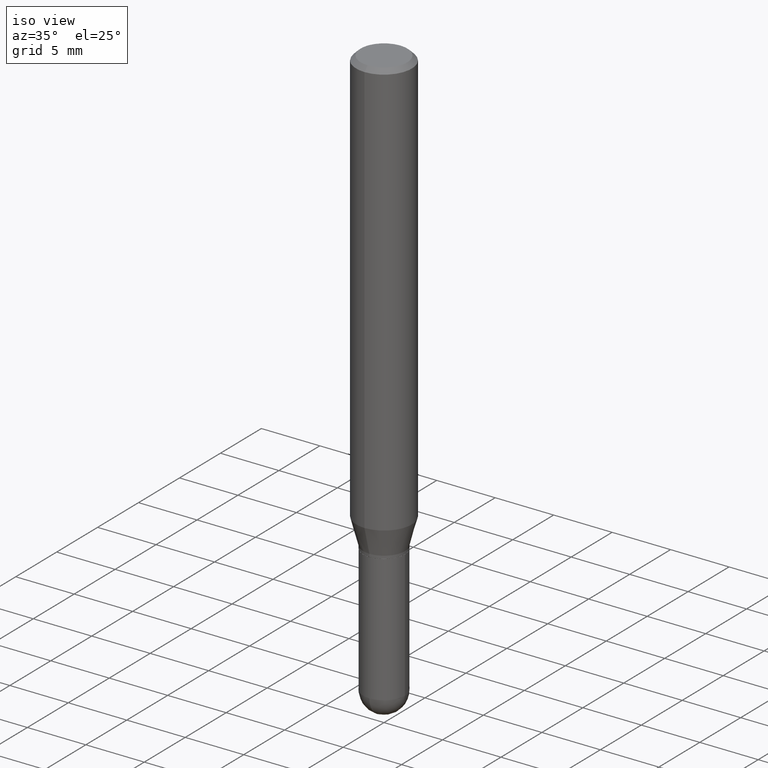
[diagram: clean part render]
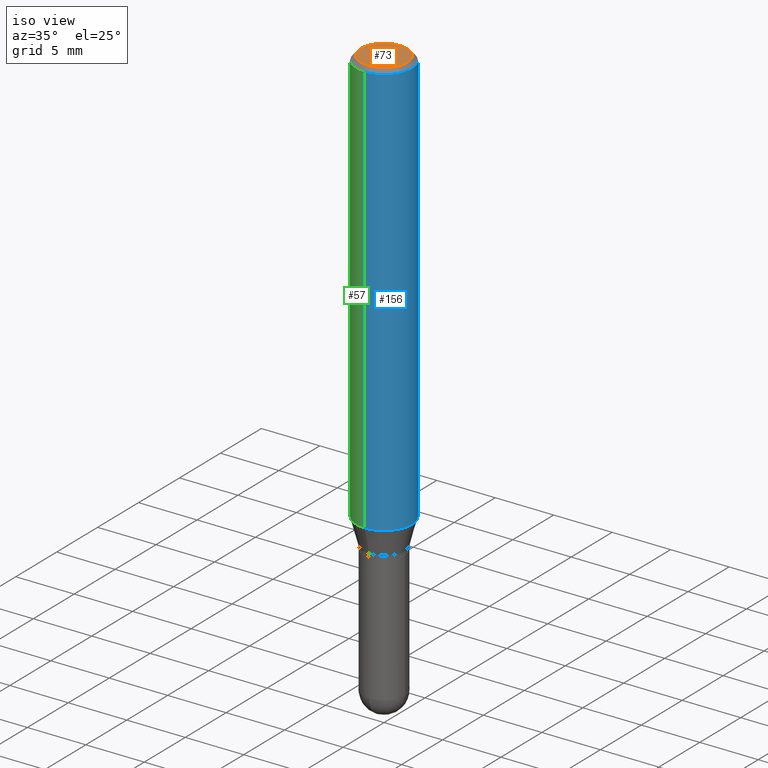
[diagram: same view with three faces highlighted in distinct colors, each labeled with its STEP entity id]
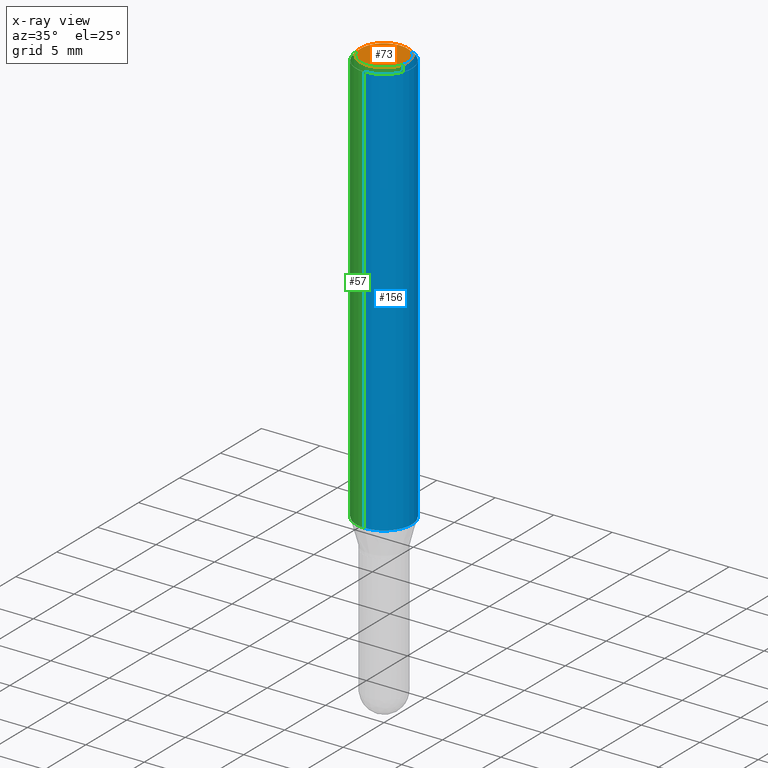
[diagram: x-ray of the same camera — body ghosted, the three highlighted faces saturated]
A machine part, iso view with three faces highlighted in distinct colors.
The next image is the same camera in x-ray (body ghosted, the three faces saturated) — at least one of them is partly hidden behind the body in this view.
Their STEP definitions:

[orange] entity #73 — the highlighted planar face has unit normal (0, -0, -1).
#72 = VERTEX_POINT ( 'NONE', #98 ) ;
#73 = ADVANCED_FACE ( 'NONE', ( #197 ), #77, .F. ) ;
#77 = PLANE ( 'NONE',  #104 ) ;
#98 = CARTESIAN_POINT ( 'NONE',  ( 6.022805309504406221E-16, 0.07875000000000001443, -2.531073514825954590E-16 ) ) ;
#104 = AXIS2_PLACEMENT_3D ( 'NONE', #204, #506, #401 ) ;
#111 = DIRECTION ( 'NONE',  ( -2.445022562880343100E-29, 3.492120384654201603E-15, 1.000000000000000000 ) ) ;
#149 = CARTESIAN_POINT ( 'NONE',  ( -5.917179523077944868E-16, -0.07875000000000001443, 2.969016091004413093E-16 ) ) ;
#188 = EDGE_CURVE ( 'NONE', #237, #72, #296, .T. ) ;
#197 = FACE_OUTER_BOUND ( 'NONE', #361, .T. ) ;
#204 = CARTESIAN_POINT ( 'NONE',  ( 5.499083108677934443E-16, 0.07875000000000001443, -2.640559158870569216E-16 ) ) ;
#237 = VERTEX_POINT ( 'NONE', #149 ) ;
#246 = CARTESIAN_POINT ( 'NONE',  ( -5.353897400011380051E-46, 7.646740987903862261E-32, 2.189712880892295595E-17 ) ) ;
#250 = AXIS2_PLACEMENT_3D ( 'NONE', #282, #390, #444 ) ;
#282 = CARTESIAN_POINT ( 'NONE',  ( -5.353897400011380051E-46, 7.646740987903862261E-32, 2.189712880892295595E-17 ) ) ;
#296 = CIRCLE ( 'NONE', #250, 0.07875000000000001443 ) ;
#340 = AXIS2_PLACEMENT_3D ( 'NONE', #246, #111, #462 ) ;
#361 = EDGE_LOOP ( 'NONE', ( #478, #501 ) ) ;
#385 = CIRCLE ( 'NONE', #340, 0.07875000000000001443 ) ;
#390 = DIRECTION ( 'NONE',  ( -2.445022562880343100E-29, 3.492120384654201603E-15, 1.000000000000000000 ) ) ;
#401 = DIRECTION ( 'NONE',  ( 6.982962677686265922E-15, 1.000000000000000000, -3.492120384654201603E-15 ) ) ;
#411 = EDGE_CURVE ( 'NONE', #72, #237, #385, .T. ) ;
#444 = DIRECTION ( 'NONE',  ( -6.982962677686264344E-15, -1.000000000000000000, 3.492120384654201209E-15 ) ) ;
#462 = DIRECTION ( 'NONE',  ( -6.982962677686264344E-15, -1.000000000000000000, 3.492120384654201209E-15 ) ) ;
#478 = ORIENTED_EDGE ( 'NONE', *, *, #411, .T. ) ;
#501 = ORIENTED_EDGE ( 'NONE', *, *, #188, .T. ) ;
#506 = DIRECTION ( 'NONE',  ( 2.445022562880342820E-29, -3.492120384654201603E-15, -1.000000000000000000 ) ) ;

[blue] entity #156 — the highlighted cylindrical surface (edge-blend (fillet) strip) has radius 2.3813 mm, axis along (-0, 0, 1).
#8 = DIRECTION ( 'NONE',  ( -6.982962677686265922E-15, -1.000000000000000000, 2.913971193241880372E-15 ) ) ;
#25 = VERTEX_POINT ( 'NONE', #69 ) ;
#30 = CARTESIAN_POINT ( 'NONE',  ( 6.661338147751283383E-16, 0.09374999999999512890, -1.402483408562509304 ) ) ;
#39 = ORIENTED_EDGE ( 'NONE', *, *, #328, .F. ) ;
#51 = AXIS2_PLACEMENT_3D ( 'NONE', #169, #332, #8 ) ;
#69 = CARTESIAN_POINT ( 'NONE',  ( -6.546527510330871097E-16, -0.09375000000000005551, -0.01499999999999965250 ) ) ;
#74 = DIRECTION ( 'NONE',  ( -2.445022562880343100E-29, 3.492120384654201603E-15, 1.000000000000000000 ) ) ;
#92 = EDGE_CURVE ( 'NONE', #25, #195, #288, .T. ) ;
#108 = CARTESIAN_POINT ( 'NONE',  ( -6.546527510330875041E-16, -0.09375000000000001388, 3.273862860613314496E-16 ) ) ;
#133 = EDGE_CURVE ( 'NONE', #210, #286, #384, .T. ) ;
#141 = EDGE_CURVE ( 'NONE', #286, #195, #455, .T. ) ;
#151 = AXIS2_PLACEMENT_3D ( 'NONE', #479, #285, #424 ) ;
#156 = ADVANCED_FACE ( 'NONE', ( #174 ), #317, .T. ) ;
#157 = CARTESIAN_POINT ( 'NONE',  ( 3.667533844320509501E-31, -5.238180576981294836E-17, -0.01499999999999997863 ) ) ;
#159 = DIRECTION ( 'NONE',  ( -6.982962677686265922E-15, -1.000000000000000000, 3.483106191921935160E-15 ) ) ;
#167 = CARTESIAN_POINT ( 'NONE',  ( 6.661338147750938256E-16, 0.09375000000000001388, -3.273862860613314496E-16 ) ) ;
#169 = CARTESIAN_POINT ( 'NONE',  ( 3.429103578000664545E-29, -4.897640900180445107E-15, -1.402483408562508860 ) ) ;
#172 = LINE ( 'NONE', #108, #376 ) ;
#174 = FACE_OUTER_BOUND ( 'NONE', #281, .T. ) ;
#195 = VERTEX_POINT ( 'NONE', #329 ) ;
#210 = VERTEX_POINT ( 'NONE', #485 ) ;
#253 = DIRECTION ( 'NONE',  ( -2.445022562880342820E-29, 3.492120384654201603E-15, 1.000000000000000000 ) ) ;
#265 = ORIENTED_EDGE ( 'NONE', *, *, #133, .T. ) ;
#268 = DIRECTION ( 'NONE',  ( -2.445022562880342820E-29, 3.492120384654201603E-15, 1.000000000000000000 ) ) ;
#281 = EDGE_LOOP ( 'NONE', ( #265, #481, #389, #39 ) ) ;
#285 = DIRECTION ( 'NONE',  ( -2.445022562880343100E-29, 3.492120384654201603E-15, 1.000000000000000000 ) ) ;
#286 = VERTEX_POINT ( 'NONE', #30 ) ;
#288 = CIRCLE ( 'NONE', #310, 0.09375000000000001388 ) ;
#310 = AXIS2_PLACEMENT_3D ( 'NONE', #157, #74, #159 ) ;
#317 = CYLINDRICAL_SURFACE ( 'NONE', #151, 0.09375000000000001388 ) ;
#328 = EDGE_CURVE ( 'NONE', #210, #25, #172, .T. ) ;
#329 = CARTESIAN_POINT ( 'NONE',  ( 6.661338147751283383E-16, 0.09374999999999994449, -0.01500000000000030476 ) ) ;
#332 = DIRECTION ( 'NONE',  ( -2.445022562880343100E-29, 3.492120384654201603E-15, 1.000000000000000000 ) ) ;
#376 = VECTOR ( 'NONE', #268, 39.37007874015748143 ) ;
#384 = CIRCLE ( 'NONE', #51, 0.09375000000000001388 ) ;
#389 = ORIENTED_EDGE ( 'NONE', *, *, #92, .F. ) ;
#420 = VECTOR ( 'NONE', #253, 39.37007874015748143 ) ;
#424 = DIRECTION ( 'NONE',  ( -6.982962677686265922E-15, -1.000000000000000000, 3.492120384654201603E-15 ) ) ;
#455 = LINE ( 'NONE', #167, #420 ) ;
#479 = CARTESIAN_POINT ( 'NONE',  ( 0.000000000000000000, 0.000000000000000000, 0.000000000000000000 ) ) ;
#481 = ORIENTED_EDGE ( 'NONE', *, *, #141, .T. ) ;
#485 = CARTESIAN_POINT ( 'NONE',  ( -6.546527510330530901E-16, -0.09375000000000488498, -1.402483408562508638 ) ) ;

[green] entity #57 — the highlighted cylindrical surface (edge-blend (fillet) strip) has radius 2.3813 mm, axis along (-0, 0, 1).
#25 = VERTEX_POINT ( 'NONE', #69 ) ;
#30 = CARTESIAN_POINT ( 'NONE',  ( 6.661338147751283383E-16, 0.09374999999999512890, -1.402483408562509304 ) ) ;
#55 = CARTESIAN_POINT ( 'NONE',  ( 0.000000000000000000, 0.000000000000000000, 0.000000000000000000 ) ) ;
#57 = ADVANCED_FACE ( 'NONE', ( #61 ), #137, .T. ) ;
#61 = FACE_OUTER_BOUND ( 'NONE', #365, .T. ) ;
#62 = AXIS2_PLACEMENT_3D ( 'NONE', #192, #297, #208 ) ;
#69 = CARTESIAN_POINT ( 'NONE',  ( -6.546527510330871097E-16, -0.09375000000000005551, -0.01499999999999965250 ) ) ;
#108 = CARTESIAN_POINT ( 'NONE',  ( -6.546527510330875041E-16, -0.09375000000000001388, 3.273862860613314496E-16 ) ) ;
#137 = CYLINDRICAL_SURFACE ( 'NONE', #179, 0.09375000000000001388 ) ;
#141 = EDGE_CURVE ( 'NONE', #286, #195, #455, .T. ) ;
#153 = AXIS2_PLACEMENT_3D ( 'NONE', #463, #456, #464 ) ;
#167 = CARTESIAN_POINT ( 'NONE',  ( 6.661338147750938256E-16, 0.09375000000000001388, -3.273862860613314496E-16 ) ) ;
#172 = LINE ( 'NONE', #108, #376 ) ;
#179 = AXIS2_PLACEMENT_3D ( 'NONE', #55, #303, #217 ) ;
#192 = CARTESIAN_POINT ( 'NONE',  ( 3.429103578000664545E-29, -4.897640900180445107E-15, -1.402483408562508860 ) ) ;
#195 = VERTEX_POINT ( 'NONE', #329 ) ;
#208 = DIRECTION ( 'NONE',  ( -6.982962677686265922E-15, -1.000000000000000000, 2.913971193241880372E-15 ) ) ;
#210 = VERTEX_POINT ( 'NONE', #485 ) ;
#217 = DIRECTION ( 'NONE',  ( -6.982962677686265922E-15, -1.000000000000000000, 3.492120384654201603E-15 ) ) ;
#244 = ORIENTED_EDGE ( 'NONE', *, *, #441, .F. ) ;
#253 = DIRECTION ( 'NONE',  ( -2.445022562880342820E-29, 3.492120384654201603E-15, 1.000000000000000000 ) ) ;
#268 = DIRECTION ( 'NONE',  ( -2.445022562880342820E-29, 3.492120384654201603E-15, 1.000000000000000000 ) ) ;
#286 = VERTEX_POINT ( 'NONE', #30 ) ;
#297 = DIRECTION ( 'NONE',  ( -2.445022562880343100E-29, 3.492120384654201603E-15, 1.000000000000000000 ) ) ;
#303 = DIRECTION ( 'NONE',  ( -2.445022562880343100E-29, 3.492120384654201603E-15, 1.000000000000000000 ) ) ;
#328 = EDGE_CURVE ( 'NONE', #210, #25, #172, .T. ) ;
#329 = CARTESIAN_POINT ( 'NONE',  ( 6.661338147751283383E-16, 0.09374999999999994449, -0.01500000000000030476 ) ) ;
#355 = ORIENTED_EDGE ( 'NONE', *, *, #141, .F. ) ;
#358 = EDGE_CURVE ( 'NONE', #286, #210, #474, .T. ) ;
#365 = EDGE_LOOP ( 'NONE', ( #355, #483, #507, #244 ) ) ;
#376 = VECTOR ( 'NONE', #268, 39.37007874015748143 ) ;
#420 = VECTOR ( 'NONE', #253, 39.37007874015748143 ) ;
#436 = CIRCLE ( 'NONE', #153, 0.09375000000000001388 ) ;
#441 = EDGE_CURVE ( 'NONE', #195, #25, #436, .T. ) ;
#455 = LINE ( 'NONE', #167, #420 ) ;
#456 = DIRECTION ( 'NONE',  ( -2.445022562880343100E-29, 3.492120384654201603E-15, 1.000000000000000000 ) ) ;
#463 = CARTESIAN_POINT ( 'NONE',  ( 3.667533844320509501E-31, -5.238180576981294836E-17, -0.01499999999999997863 ) ) ;
#464 = DIRECTION ( 'NONE',  ( -6.982962677686265922E-15, -1.000000000000000000, 3.483106191921935160E-15 ) ) ;
#474 = CIRCLE ( 'NONE', #62, 0.09375000000000001388 ) ;
#483 = ORIENTED_EDGE ( 'NONE', *, *, #358, .T. ) ;
#485 = CARTESIAN_POINT ( 'NONE',  ( -6.546527510330530901E-16, -0.09375000000000488498, -1.402483408562508638 ) ) ;
#507 = ORIENTED_EDGE ( 'NONE', *, *, #328, .T. ) ;